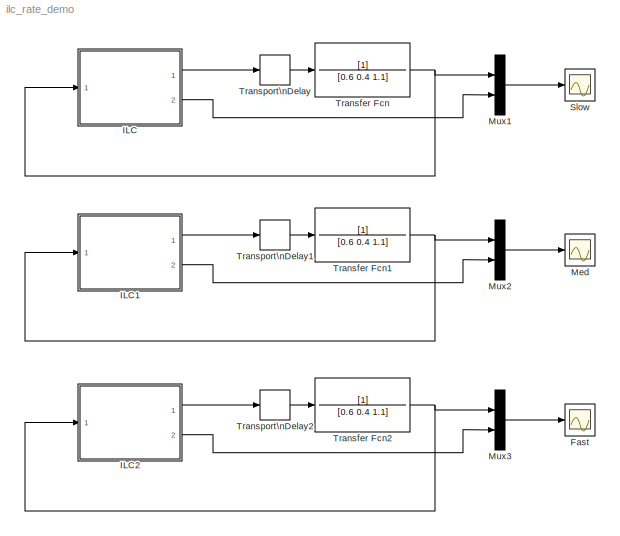
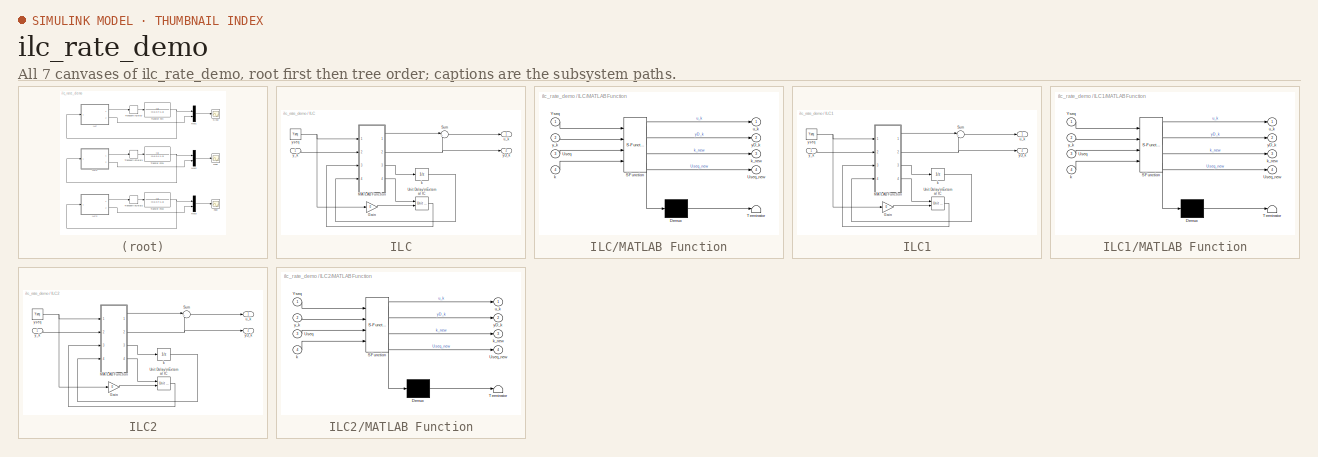
[diagram: thumbnail index - all 7 canvases of the model, root first then tree order]
MODEL ilc_rate_demo
KIND model
BLOCK [Scope] Fast
  Ports = [1]
  SID = 66
  ScopeSpecificationString = Simulink.scopes.TimeScopeBlockCfg('CurrentConfiguration', extmgr.ConfigurationSet(extmgr.Configuration('Core','General UI',true),extmgr.Configuration('Core','Source UI',true),extmgr.Configuration('Sources','WiredSimulink',true,'DataLoggingSaveFormat','StructureWithTime','DataLoggingDecimation','1','DataLoggingDecimateData',true,'DataLoggingVariableName','ScopeData2'),extmgr.Configuration('Visuals'...<+1733ch>
BLOCK [SubSystem] ILC
  Description = Iterative Learning Control
  Ports = [1, 2]
  RequestExecContextInheritance = off
  SID = 4
  SystemSampleTime = dt
  TreatAsAtomicUnit = on
  Variant = off
BLOCK [Gain] ILC/Gain
  Gain = 0
  OutDataTypeStr = Inherit: Inherit via internal rule
  ParamDataTypeStr = Inherit: Inherit via internal rule
  SID = 17
  SaturateOnIntegerOverflow = off
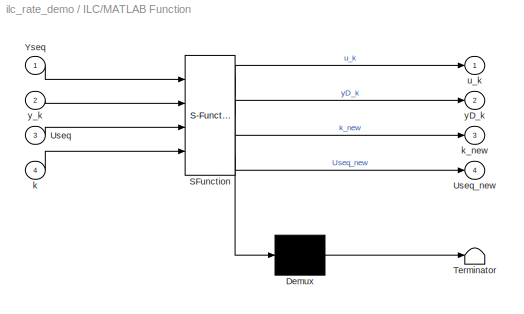
BLOCK [SubSystem] ILC/MATLAB Function
  ErrorFcn = Stateflow.Translate.translate
  PermitHierarchicalResolution = ExplicitOnly
  Ports = [4, 4]
  RequestExecContextInheritance = off
  SFBlockType = MATLAB Function
  SID = 13
  TreatAsAtomicUnit = on
  Variant = off
BLOCK [Demux] ILC/MATLAB Function/ Demux 
  Outputs = 1
  Ports = [1, 1]
  SID = 13::32
BLOCK [S-Function] ILC/MATLAB Function/ SFunction 
  EnableBusSupport = on
  FunctionName = sf_sfun
  Parameters = gamma
  PortCounts = [4 5]
  Ports = [4, 5]
  SFunctionDeploymentMode = off
  SID = 13::31
  Tag = Stateflow S-Function ilc_rate_demo 2
BLOCK [Terminator] ILC/MATLAB Function/ Terminator 
  SID = 13::33
BLOCK [Inport] ILC/MATLAB Function/Useq
  IconDisplay = Port number
  Port = 3
  SID = 13::24
BLOCK [Outport] ILC/MATLAB Function/Useq_new
  IconDisplay = Port number
  Port = 4
  SID = 13::29
BLOCK [Inport] ILC/MATLAB Function/Yseq
  IconDisplay = Port number
  SID = 13::1
BLOCK [Inport] ILC/MATLAB Function/k
  IconDisplay = Port number
  Port = 4
  SID = 13::25
BLOCK [Outport] ILC/MATLAB Function/k_new
  IconDisplay = Port number
  Port = 3
  SID = 13::28
BLOCK [Outport] ILC/MATLAB Function/u_k
  IconDisplay = Port number
  SID = 13::27
BLOCK [Outport] ILC/MATLAB Function/yD_k
  IconDisplay = Port number
  Port = 2
  SID = 13::5
BLOCK [Inport] ILC/MATLAB Function/y_k
  IconDisplay = Port number
  Port = 2
  SID = 13::23
BLOCK [Sum] ILC/Sum
  IconShape = round
  InputSameDT = off
  Inputs = |++
  OutDataTypeStr = Inherit: Inherit via internal rule
  Ports = [2, 1]
  SID = 14
  SaturateOnIntegerOverflow = off
BLOCK [Reference] ILC/Unit Delay\nExternal IC  REF=simulink/Additional Math\n& Discrete/Additional\nDiscrete/Unit Delay\nExternal IC
  Ports = [2, 1]
  SID = 16
  SourceBlock = simulink/Additional Math\n& Discrete/Additional\nDiscrete/Unit Delay\nExternal IC
  SourceType = Unit Delay External Initial Condition
  tsamp = -1
BLOCK [UnitDelay] ILC/k
  InitialCondition = 1
  InputProcessing = Elements as channels (sample based)
  SID = 11
  SampleTime = -1
BLOCK [Outport] ILC/u_k
  IconDisplay = Port number
  SID = 6
BLOCK [Outport] ILC/yD_k
  IconDisplay = Port number
  Port = 2
  SID = 7
BLOCK [Inport] ILC/y_k
  IconDisplay = Port number
  SID = 8
BLOCK [Constant] ILC/yseq
  SID = 9
  Value = Yseq
BLOCK [SubSystem] ILC1
  Description = Iterative Learning Control
  Ports = [1, 2]
  RequestExecContextInheritance = off
  SID = 38
  SystemSampleTime = dt
  TreatAsAtomicUnit = on
  Variant = off
BLOCK [Gain] ILC1/Gain
  Gain = 0
  OutDataTypeStr = Inherit: Inherit via internal rule
  ParamDataTypeStr = Inherit: Inherit via internal rule
  SID = 40
  SaturateOnIntegerOverflow = off
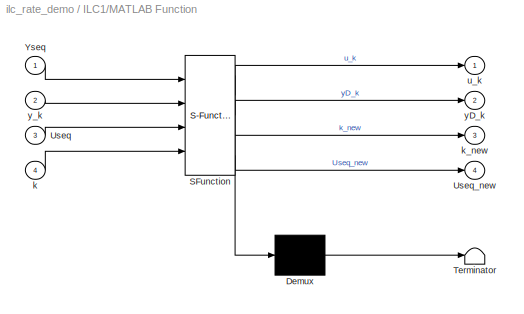
BLOCK [SubSystem] ILC1/MATLAB Function
  ErrorFcn = Stateflow.Translate.translate
  PermitHierarchicalResolution = ExplicitOnly
  Ports = [4, 4]
  RequestExecContextInheritance = off
  SFBlockType = MATLAB Function
  SID = 41
  TreatAsAtomicUnit = on
  Variant = off
BLOCK [Demux] ILC1/MATLAB Function/ Demux 
  Outputs = 1
  Ports = [1, 1]
  SID = 41::32
BLOCK [S-Function] ILC1/MATLAB Function/ SFunction 
  EnableBusSupport = on
  FunctionName = sf_sfun
  Parameters = gamma
  PortCounts = [4 5]
  Ports = [4, 5]
  SFunctionDeploymentMode = off
  SID = 41::31
  Tag = Stateflow S-Function ilc_rate_demo 1
BLOCK [Terminator] ILC1/MATLAB Function/ Terminator 
  SID = 41::33
BLOCK [Inport] ILC1/MATLAB Function/Useq
  IconDisplay = Port number
  Port = 3
  SID = 41::24
BLOCK [Outport] ILC1/MATLAB Function/Useq_new
  IconDisplay = Port number
  Port = 4
  SID = 41::29
BLOCK [Inport] ILC1/MATLAB Function/Yseq
  IconDisplay = Port number
  SID = 41::1
BLOCK [Inport] ILC1/MATLAB Function/k
  IconDisplay = Port number
  Port = 4
  SID = 41::25
BLOCK [Outport] ILC1/MATLAB Function/k_new
  IconDisplay = Port number
  Port = 3
  SID = 41::28
BLOCK [Outport] ILC1/MATLAB Function/u_k
  IconDisplay = Port number
  SID = 41::27
BLOCK [Outport] ILC1/MATLAB Function/yD_k
  IconDisplay = Port number
  Port = 2
  SID = 41::5
BLOCK [Inport] ILC1/MATLAB Function/y_k
  IconDisplay = Port number
  Port = 2
  SID = 41::23
BLOCK [Sum] ILC1/Sum
  IconShape = round
  InputSameDT = off
  Inputs = |++
  OutDataTypeStr = Inherit: Inherit via internal rule
  Ports = [2, 1]
  SID = 42
  SaturateOnIntegerOverflow = off
BLOCK [Reference] ILC1/Unit Delay\nExternal IC  REF=simulink/Additional Math\n& Discrete/Additional\nDiscrete/Unit Delay\nExternal IC
  Ports = [2, 1]
  SID = 43
  SourceBlock = simulink/Additional Math\n& Discrete/Additional\nDiscrete/Unit Delay\nExternal IC
  SourceType = Unit Delay External Initial Condition
  tsamp = -1
BLOCK [UnitDelay] ILC1/k
  InitialCondition = 1
  InputProcessing = Elements as channels (sample based)
  SID = 44
  SampleTime = -1
BLOCK [Outport] ILC1/u_k
  IconDisplay = Port number
  SID = 46
BLOCK [Outport] ILC1/yD_k
  IconDisplay = Port number
  Port = 2
  SID = 47
BLOCK [Inport] ILC1/y_k
  IconDisplay = Port number
  SID = 39
BLOCK [Constant] ILC1/yseq
  SID = 45
  Value = Yseq
BLOCK [SubSystem] ILC2
  Description = Iterative Learning Control
  Ports = [1, 2]
  RequestExecContextInheritance = off
  SID = 50
  SystemSampleTime = dt
  TreatAsAtomicUnit = on
  Variant = off
BLOCK [Gain] ILC2/Gain
  Gain = 0
  OutDataTypeStr = Inherit: Inherit via internal rule
  ParamDataTypeStr = Inherit: Inherit via internal rule
  SID = 52
  SaturateOnIntegerOverflow = off
BLOCK [SubSystem] ILC2/MATLAB Function
  ErrorFcn = Stateflow.Translate.translate
  PermitHierarchicalResolution = ExplicitOnly
  Ports = [4, 4]
  RequestExecContextInheritance = off
  SFBlockType = MATLAB Function
  SID = 53
  TreatAsAtomicUnit = on
  Variant = off
BLOCK [Demux] ILC2/MATLAB Function/ Demux 
  Outputs = 1
  Ports = [1, 1]
  SID = 53::32
BLOCK [S-Function] ILC2/MATLAB Function/ SFunction 
  EnableBusSupport = on
  FunctionName = sf_sfun
  Parameters = gamma
  PortCounts = [4 5]
  Ports = [4, 5]
  SFunctionDeploymentMode = off
  SID = 53::31
  Tag = Stateflow S-Function ilc_rate_demo 3
BLOCK [Terminator] ILC2/MATLAB Function/ Terminator 
  SID = 53::33
BLOCK [Inport] ILC2/MATLAB Function/Useq
  IconDisplay = Port number
  Port = 3
  SID = 53::24
BLOCK [Outport] ILC2/MATLAB Function/Useq_new
  IconDisplay = Port number
  Port = 4
  SID = 53::29
BLOCK [Inport] ILC2/MATLAB Function/Yseq
  IconDisplay = Port number
  SID = 53::1
BLOCK [Inport] ILC2/MATLAB Function/k
  IconDisplay = Port number
  Port = 4
  SID = 53::25
BLOCK [Outport] ILC2/MATLAB Function/k_new
  IconDisplay = Port number
  Port = 3
  SID = 53::28
BLOCK [Outport] ILC2/MATLAB Function/u_k
  IconDisplay = Port number
  SID = 53::27
BLOCK [Outport] ILC2/MATLAB Function/yD_k
  IconDisplay = Port number
  Port = 2
  SID = 53::5
BLOCK [Inport] ILC2/MATLAB Function/y_k
  IconDisplay = Port number
  Port = 2
  SID = 53::23
BLOCK [Sum] ILC2/Sum
  IconShape = round
  InputSameDT = off
  Inputs = |++
  OutDataTypeStr = Inherit: Inherit via internal rule
  Ports = [2, 1]
  SID = 54
  SaturateOnIntegerOverflow = off
BLOCK [Reference] ILC2/Unit Delay\nExternal IC  REF=simulink/Additional Math\n& Discrete/Additional\nDiscrete/Unit Delay\nExternal IC
  Ports = [2, 1]
  SID = 55
  SourceBlock = simulink/Additional Math\n& Discrete/Additional\nDiscrete/Unit Delay\nExternal IC
  SourceType = Unit Delay External Initial Condition
  tsamp = -1
BLOCK [UnitDelay] ILC2/k
  InitialCondition = 1
  InputProcessing = Elements as channels (sample based)
  SID = 56
  SampleTime = -1
BLOCK [Outport] ILC2/u_k
  IconDisplay = Port number
  SID = 58
BLOCK [Outport] ILC2/yD_k
  IconDisplay = Port number
  Port = 2
  SID = 59
BLOCK [Inport] ILC2/y_k
  IconDisplay = Port number
  SID = 51
BLOCK [Constant] ILC2/yseq
  SID = 57
  Value = Yseq
BLOCK [Scope] Med
  Ports = [1]
  SID = 65
  ScopeSpecificationString = Simulink.scopes.TimeScopeBlockCfg('CurrentConfiguration', extmgr.ConfigurationSet(extmgr.Configuration('Core','General UI',true),extmgr.Configuration('Core','Source UI',true),extmgr.Configuration('Sources','WiredSimulink',true,'DataLoggingSaveFormat','StructureWithTime','DataLoggingDecimation','1','DataLoggingDecimateData',true,'DataLoggingVariableName','ScopeData1'),extmgr.Configuration('Visuals'...<+1733ch>
BLOCK [Mux] Mux1
  DisplayOption = bar
  Inputs = 2
  Ports = [2, 1]
  SID = 62
BLOCK [Mux] Mux2
  DisplayOption = bar
  Inputs = 2
  Ports = [2, 1]
  SID = 64
BLOCK [Mux] Mux3
  DisplayOption = bar
  Inputs = 2
  Ports = [2, 1]
  SID = 67
BLOCK [Scope] Slow
  Ports = [1]
  SID = 3
  ScopeSpecificationString = Simulink.scopes.TimeScopeBlockCfg('CurrentConfiguration', extmgr.ConfigurationSet(extmgr.Configuration('Core','General UI',true),extmgr.Configuration('Core','Source UI',true),extmgr.Configuration('Sources','WiredSimulink',true,'DataLoggingSaveFormat','StructureWithTime','DataLoggingDecimation','1','DataLoggingDecimateData',true),extmgr.Configuration('Visuals','Time Domain',true,'SerializedDisplays...<+1692ch>
BLOCK [TransferFcn] Transfer Fcn
  Denominator = [0.6 0.4 1.1]
  SID = 1
BLOCK [TransferFcn] Transfer Fcn1
  Denominator = [0.6 0.4 1.1]
  SID = 48
BLOCK [TransferFcn] Transfer Fcn2
  Denominator = [0.6 0.4 1.1]
  SID = 60
BLOCK [TransportDelay] Transport\nDelay
  DelayTime = 0.75
  Ports = [1, 1]
  SID = 23
BLOCK [TransportDelay] Transport\nDelay1
  DelayTime = 0.75
  Ports = [1, 1]
  SID = 49
BLOCK [TransportDelay] Transport\nDelay2
  DelayTime = 0.75
  Ports = [1, 1]
  SID = 61
LINE ILC/Gain:1 -> ILC/Unit Delay\nExternal IC:2
LINE ILC/MATLAB Function/ Demux :1 -> ILC/MATLAB Function/ Terminator :1
LINE ILC/MATLAB Function/ SFunction :1 -> ILC/MATLAB Function/ Demux :1
LINE ILC/MATLAB Function/ SFunction :2 -> ILC/MATLAB Function/u_k:1
LINE ILC/MATLAB Function/ SFunction :3 -> ILC/MATLAB Function/yD_k:1
LINE ILC/MATLAB Function/ SFunction :4 -> ILC/MATLAB Function/k_new:1
LINE ILC/MATLAB Function/ SFunction :5 -> ILC/MATLAB Function/Useq_new:1
LINE ILC/MATLAB Function/Useq:1 -> ILC/MATLAB Function/ SFunction :3
LINE ILC/MATLAB Function/Yseq:1 -> ILC/MATLAB Function/ SFunction :1
LINE ILC/MATLAB Function/k:1 -> ILC/MATLAB Function/ SFunction :4
LINE ILC/MATLAB Function/y_k:1 -> ILC/MATLAB Function/ SFunction :2
LINE ILC/MATLAB Function:1 -> ILC/Sum:1
NET ILC/MATLAB Function:2 -> ILC/Sum:2, ILC/yD_k:1
LINE ILC/MATLAB Function:3 -> ILC/k:1
LINE ILC/MATLAB Function:4 -> ILC/Unit Delay\nExternal IC:1
LINE ILC/Sum:1 -> ILC/u_k:1
LINE ILC/Unit Delay\nExternal IC:1 -> ILC/MATLAB Function:3
LINE ILC/k:1 -> ILC/MATLAB Function:4
LINE ILC/y_k:1 -> ILC/MATLAB Function:2
NET ILC/yseq:1 -> ILC/Gain:1, ILC/MATLAB Function:1
LINE ILC1/Gain:1 -> ILC1/Unit Delay\nExternal IC:2
LINE ILC1/MATLAB Function/ Demux :1 -> ILC1/MATLAB Function/ Terminator :1
LINE ILC1/MATLAB Function/ SFunction :1 -> ILC1/MATLAB Function/ Demux :1
LINE ILC1/MATLAB Function/ SFunction :2 -> ILC1/MATLAB Function/u_k:1
LINE ILC1/MATLAB Function/ SFunction :3 -> ILC1/MATLAB Function/yD_k:1
LINE ILC1/MATLAB Function/ SFunction :4 -> ILC1/MATLAB Function/k_new:1
LINE ILC1/MATLAB Function/ SFunction :5 -> ILC1/MATLAB Function/Useq_new:1
LINE ILC1/MATLAB Function/Useq:1 -> ILC1/MATLAB Function/ SFunction :3
LINE ILC1/MATLAB Function/Yseq:1 -> ILC1/MATLAB Function/ SFunction :1
LINE ILC1/MATLAB Function/k:1 -> ILC1/MATLAB Function/ SFunction :4
LINE ILC1/MATLAB Function/y_k:1 -> ILC1/MATLAB Function/ SFunction :2
LINE ILC1/MATLAB Function:1 -> ILC1/Sum:1
NET ILC1/MATLAB Function:2 -> ILC1/Sum:2, ILC1/yD_k:1
LINE ILC1/MATLAB Function:3 -> ILC1/k:1
LINE ILC1/MATLAB Function:4 -> ILC1/Unit Delay\nExternal IC:1
LINE ILC1/Sum:1 -> ILC1/u_k:1
LINE ILC1/Unit Delay\nExternal IC:1 -> ILC1/MATLAB Function:3
LINE ILC1/k:1 -> ILC1/MATLAB Function:4
LINE ILC1/y_k:1 -> ILC1/MATLAB Function:2
NET ILC1/yseq:1 -> ILC1/Gain:1, ILC1/MATLAB Function:1
LINE ILC1:1 -> Transport\nDelay1:1
LINE ILC1:2 -> Mux2:2
LINE ILC2/Gain:1 -> ILC2/Unit Delay\nExternal IC:2
LINE ILC2/MATLAB Function/ Demux :1 -> ILC2/MATLAB Function/ Terminator :1
LINE ILC2/MATLAB Function/ SFunction :1 -> ILC2/MATLAB Function/ Demux :1
LINE ILC2/MATLAB Function/ SFunction :2 -> ILC2/MATLAB Function/u_k:1
LINE ILC2/MATLAB Function/ SFunction :3 -> ILC2/MATLAB Function/yD_k:1
LINE ILC2/MATLAB Function/ SFunction :4 -> ILC2/MATLAB Function/k_new:1
LINE ILC2/MATLAB Function/ SFunction :5 -> ILC2/MATLAB Function/Useq_new:1
LINE ILC2/MATLAB Function/Useq:1 -> ILC2/MATLAB Function/ SFunction :3
LINE ILC2/MATLAB Function/Yseq:1 -> ILC2/MATLAB Function/ SFunction :1
LINE ILC2/MATLAB Function/k:1 -> ILC2/MATLAB Function/ SFunction :4
LINE ILC2/MATLAB Function/y_k:1 -> ILC2/MATLAB Function/ SFunction :2
LINE ILC2/MATLAB Function:1 -> ILC2/Sum:1
NET ILC2/MATLAB Function:2 -> ILC2/Sum:2, ILC2/yD_k:1
LINE ILC2/MATLAB Function:3 -> ILC2/k:1
LINE ILC2/MATLAB Function:4 -> ILC2/Unit Delay\nExternal IC:1
LINE ILC2/Sum:1 -> ILC2/u_k:1
LINE ILC2/Unit Delay\nExternal IC:1 -> ILC2/MATLAB Function:3
LINE ILC2/k:1 -> ILC2/MATLAB Function:4
LINE ILC2/y_k:1 -> ILC2/MATLAB Function:2
NET ILC2/yseq:1 -> ILC2/Gain:1, ILC2/MATLAB Function:1
LINE ILC2:1 -> Transport\nDelay2:1
LINE ILC2:2 -> Mux3:2
LINE ILC:1 -> Transport\nDelay:1
LINE ILC:2 -> Mux1:2
LINE Mux1:1 -> Slow:1
LINE Mux2:1 -> Med:1
LINE Mux3:1 -> Fast:1
NET Transfer Fcn1:1 -> ILC1:1, Mux2:1
NET Transfer Fcn2:1 -> ILC2:1, Mux3:1
NET Transfer Fcn:1 -> ILC:1, Mux1:1
LINE Transport\nDelay1:1 -> Transfer Fcn1:1
LINE Transport\nDelay2:1 -> Transfer Fcn2:1
LINE Transport\nDelay:1 -> Transfer Fcn:1
note: NET lines group one-source signal fan-out (src -> all destinations, sorted); 1:1 wires keep LINE
CHART ILC1/MATLAB Function states=1 transitions=1
  STATE_LABEL 'eML_blk_kernel()'
CHART ILC/MATLAB Function states=1 transitions=1
  STATE_LABEL 'eML_blk_kernel()'
CHART ILC2/MATLAB Function states=1 transitions=1
  STATE_LABEL 'eML_blk_kernel()'
